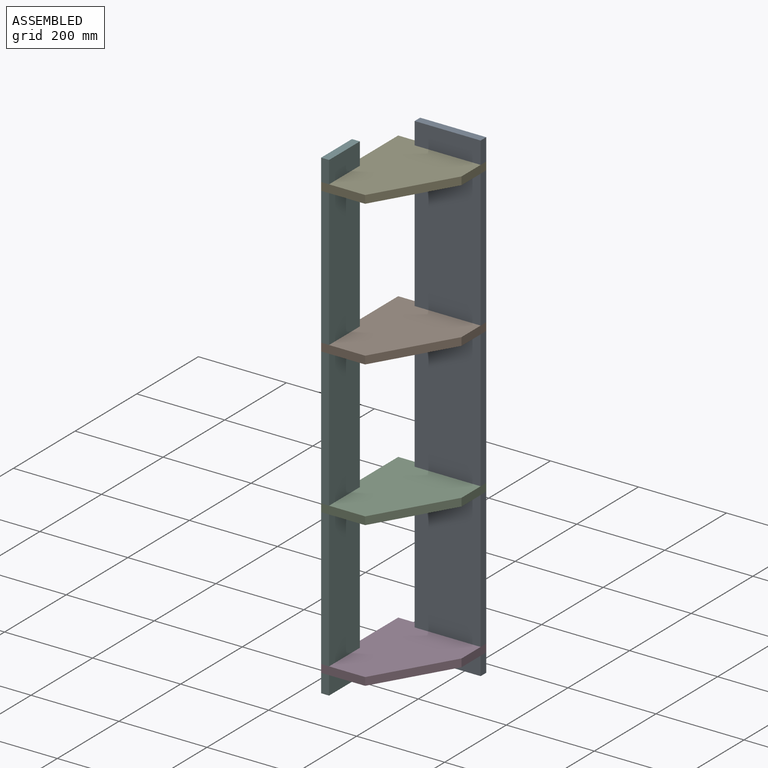
[diagram: assembled view]
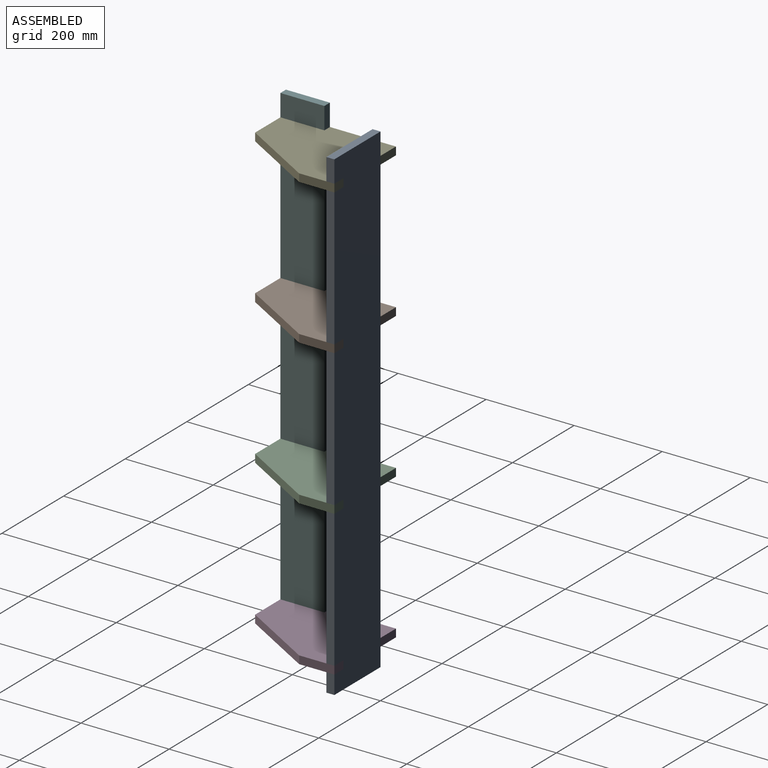
[diagram: assembled view, second angle]
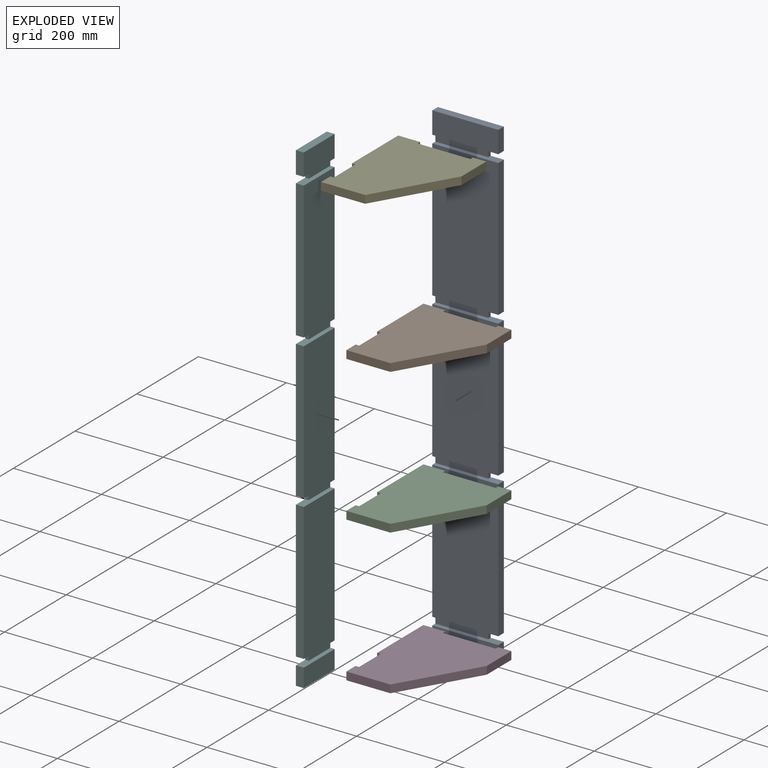
[diagram: exploded view]
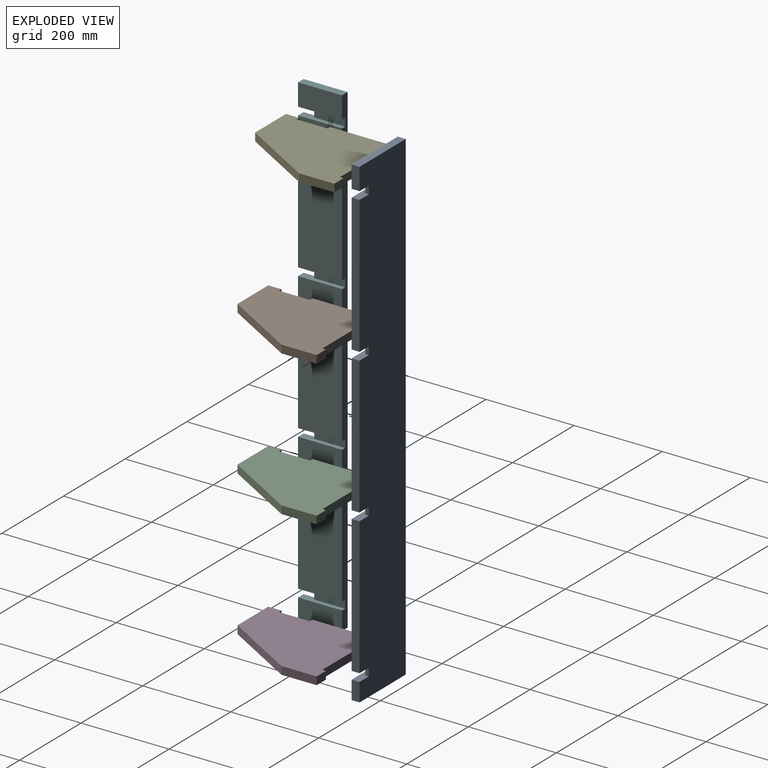
[diagram: exploded view, second angle]
ASSEMBLY  parts=6 mates=2
PART A: 30 faces, bbox 150x18x1100 mm
  f0: plane 50x18mm, normal (1,0,0), area 900mm2, adj f4,f11,f12,f15
  f1: plane 312x18mm, normal (1,0,0), area 5616mm2, adj f4,f9,f16,f17
  f2: plane 312x18mm, normal (1,0,0), area 5616mm2, adj f4,f8,f18,f20
  f3: plane 312x18mm, normal (1,0,0), area 5616mm2, adj f4,f7,f21,f23
  f4: plane 1100x150mm, normal (0,1,0), area 162840mm2, adj f0,f1,f2,f3,f6,f10,f12,f13
  f5: plane 150x42mm, normal (0,-1,0), area 6300mm2, adj f6,f10,f13,f24
  f6: plane 42x18mm, normal (1,0,0), area 756mm2, adj f4,f5,f13,f24
  f7: plane 312x150mm, normal (0,-1,0), area 46800mm2, adj f3,f10,f21,f23
  f8: plane 312x150mm, normal (0,-1,0), area 46800mm2, adj f2,f10,f18,f20
  f9: plane 312x150mm, normal (0,-1,0), area 46800mm2, adj f1,f10,f16,f17
  f10: plane 1100x18mm, normal (-1,0,0), area 19080mm2, adj f4,f5,f7,f8,f9,f11,f12,f13
  f11: plane 150x50mm, normal (0,-1,0), area 7500mm2, adj f0,f10,f12,f15
  f12: plane 150x18mm, normal (0,0,1), area 2700mm2, adj f0,f4,f10,f11
  f13: plane 150x18mm, normal (0,0,-1), area 2700mm2, adj f4,f5,f6,f10
  f14: plane 120x18mm, normal (0,-1,0), area 2160mm2, adj f10,f15,f16,f29
  f15: plane 150x18mm, normal (0,0,-1), area 1740mm2, adj f0,f4,f10,f11,f14,f29
  f16: plane 150x18mm, normal (0,0,1), area 1740mm2, adj f1,f4,f9,f10,f14,f29
  f17: plane 150x18mm, normal (0,0,-1), area 1740mm2, adj f1,f4,f9,f10,f19,f28
  f18: plane 150x18mm, normal (0,0,1), area 1740mm2, adj f2,f4,f8,f10,f19,f28
  f19: plane 120x18mm, normal (0,-1,0), area 2160mm2, adj f10,f17,f18,f28
  f20: plane 150x18mm, normal (0,0,-1), area 1740mm2, adj f2,f4,f8,f10,f22,f27
  f21: plane 150x18mm, normal (0,0,1), area 1740mm2, adj f3,f4,f7,f10,f22,f27
  f22: plane 120x18mm, normal (0,-1,0), area 2160mm2, adj f10,f20,f21,f27
  f23: plane 150x18mm, normal (0,0,-1), area 1740mm2, adj f3,f4,f7,f10,f25,f26
  f24: plane 150x18mm, normal (0,0,1), area 1740mm2, adj f4,f5,f6,f10,f25,f26
  f25: plane 120x18mm, normal (0,-1,0), area 2160mm2, adj f10,f23,f24,f26
  f26: plane 18x8mm, normal (1,0,0), area 144mm2, adj f4,f23,f24,f25
  f27: plane 18x8mm, normal (1,0,0), area 144mm2, adj f4,f20,f21,f22
  f28: plane 18x8mm, normal (1,0,0), area 144mm2, adj f4,f17,f18,f19
  f29: plane 18x8mm, normal (1,0,0), area 144mm2, adj f4,f14,f15,f16
PART B: 15 faces, bbox 250x200x18 mm
  f0: plane 30x18mm, normal (1,0,0), area 540mm2, adj f1,f12,f13,f14
  f1: plane 18x8mm, normal (0,1,0), area 144mm2, adj f0,f2,f13,f14
  f2: plane 120x18mm, normal (1,0,0), area 2160mm2, adj f1,f3,f13,f14
  f3: plane 18x8mm, normal (0,-1,0), area 144mm2, adj f2,f4,f13,f14
  f4: plane 50x18mm, normal (1,0,0), area 900mm2, adj f3,f5,f13,f14
  f5: plane 150x18mm, normal (0,1,0), area 2700mm2, adj f4,f6,f13,f14
  f6: plane 18x8mm, normal (-1,0,0), area 144mm2, adj f5,f7,f13,f14
  f7: plane 70x18mm, normal (0,1,0), area 1260mm2, adj f6,f8,f13,f14
  f8: plane 18x8mm, normal (1,0,0), area 144mm2, adj f7,f9,f13,f14
  f9: plane 30x18mm, normal (0,1,0), area 540mm2, adj f8,f10,f13,f14
  f10: plane 100x18mm, normal (-1,0,0), area 1800mm2, adj f9,f11,f13,f14
  f11: plane 170x100mm, normal (-0.51,-0.86,0), area 3550.2mm2, adj f10,f12,f13,f14
  f12: plane 80x18mm, normal (0,-1,0), area 1440mm2, adj f0,f11,f13,f14
  f13: plane 250x200mm, normal (0,0,1), area 39980mm2, adj f0,f1,f2,f3,f4,f5,f6,f7
  f14: plane 250x200mm, normal (0,0,-1), area 39980mm2, adj f0,f1,f2,f3,f4,f5,f6,f7
PART C: same geometry as B
PART D: same geometry as B
PART E: same geometry as B
PART F: 30 faces, bbox 18x100x1100 mm
  f0: plane 42x18mm, normal (0,-1,0), area 756mm2, adj f4,f11,f13,f25
  f1: plane 312x18mm, normal (0,-1,0), area 5616mm2, adj f4,f6,f22,f23
  f2: plane 312x18mm, normal (0,-1,0), area 5616mm2, adj f4,f7,f19,f20
  f3: plane 312x18mm, normal (0,-1,0), area 5616mm2, adj f4,f8,f15,f17
  f4: plane 1100x100mm, normal (-1,0,0), area 107840mm2, adj f0,f1,f2,f3,f5,f10,f12,f13
  f5: plane 1100x18mm, normal (0,1,0), area 19080mm2, adj f4,f6,f7,f8,f9,f11,f12,f13
  f6: plane 312x100mm, normal (1,0,0), area 31200mm2, adj f1,f5,f22,f23
  f7: plane 312x100mm, normal (1,0,0), area 31200mm2, adj f2,f5,f19,f20
  f8: plane 312x100mm, normal (1,0,0), area 31200mm2, adj f3,f5,f15,f17
  f9: plane 100x50mm, normal (1,0,0), area 5000mm2, adj f5,f10,f12,f14
  f10: plane 50x18mm, normal (0,-1,0), area 900mm2, adj f4,f9,f12,f14
  f11: plane 100x42mm, normal (1,0,0), area 4200mm2, adj f0,f5,f13,f25
  f12: plane 100x18mm, normal (0,0,1), area 1800mm2, adj f4,f5,f9,f10
  f13: plane 100x18mm, normal (0,0,-1), area 1800mm2, adj f0,f4,f5,f11
  f14: plane 100x18mm, normal (0,0,-1), area 1240mm2, adj f4,f5,f9,f10,f16,f26
  f15: plane 100x18mm, normal (0,0,1), area 1240mm2, adj f3,f4,f5,f8,f16,f26
  f16: plane 70x18mm, normal (1,0,0), area 1260mm2, adj f5,f14,f15,f26
  f17: plane 100x18mm, normal (0,0,-1), area 1240mm2, adj f3,f4,f5,f8,f18,f27
  f18: plane 70x18mm, normal (1,0,0), area 1260mm2, adj f5,f17,f19,f27
  f19: plane 100x18mm, normal (0,0,1), area 1240mm2, adj f2,f4,f5,f7,f18,f27
  f20: plane 100x18mm, normal (0,0,-1), area 1240mm2, adj f2,f4,f5,f7,f21,f28
  f21: plane 70x18mm, normal (1,0,0), area 1260mm2, adj f5,f20,f22,f28
  f22: plane 100x18mm, normal (0,0,1), area 1240mm2, adj f1,f4,f5,f6,f21,f28
  f23: plane 100x18mm, normal (0,0,-1), area 1240mm2, adj f1,f4,f5,f6,f24,f29
  f24: plane 70x18mm, normal (1,0,0), area 1260mm2, adj f5,f23,f25,f29
  f25: plane 100x18mm, normal (0,0,1), area 1240mm2, adj f0,f4,f5,f11,f24,f29
  f26: plane 18x8mm, normal (0,-1,0), area 144mm2, adj f4,f14,f15,f16
  f27: plane 18x8mm, normal (0,-1,0), area 144mm2, adj f4,f17,f18,f19
  f28: plane 18x8mm, normal (0,-1,0), area 144mm2, adj f4,f20,f21,f22
  f29: plane 18x8mm, normal (0,-1,0), area 144mm2, adj f4,f23,f24,f25
PLACE A t=(-291.3,-81.41,250.09)mm
PLACE B rot(axis=(0,0,1),90deg) t=(-241.3,-188.41,952.09)mm
PLACE C rot(axis=(0,0,1),90deg) t=(-241.3,-188.41,622.09)mm
PLACE D rot(axis=(0,0,1),90deg) t=(-241.3,-188.41,292.09)mm
PLACE E rot(axis=(0,0,1),90deg) t=(-241.3,-188.41,1282.09)mm
PLACE F t=(-341.3,-313.41,250.09)mm fixed
MATE fastened A.f14 <-> E.f2  axis (0,-1,0) through (-231.3,-71.41,1291.09)mm
MATE fastened E.f7 <-> F.f16  axis (-1,0,0) through (-333.3,-248.41,1291.09)mm
